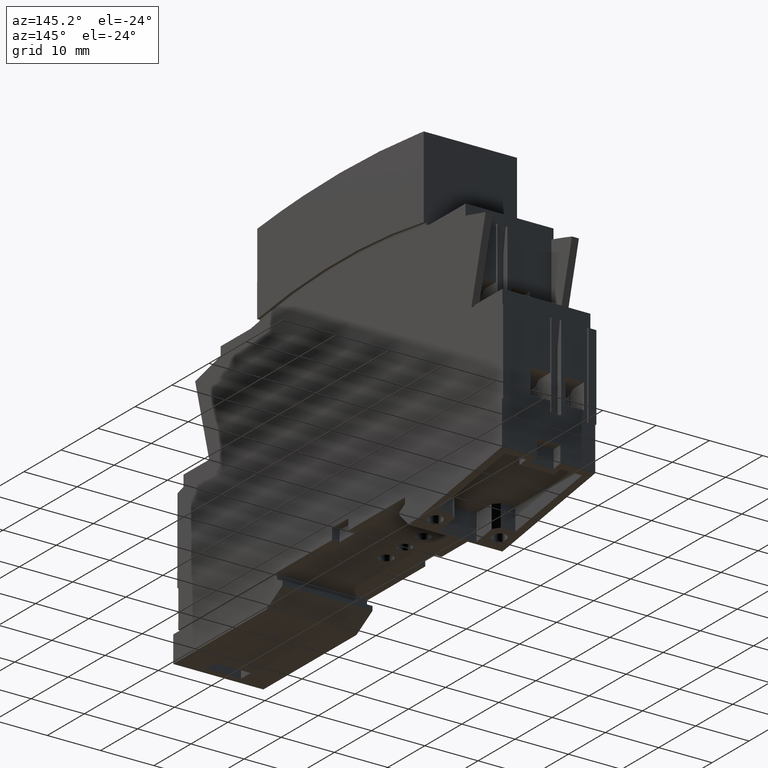
[diagram: clean part render]
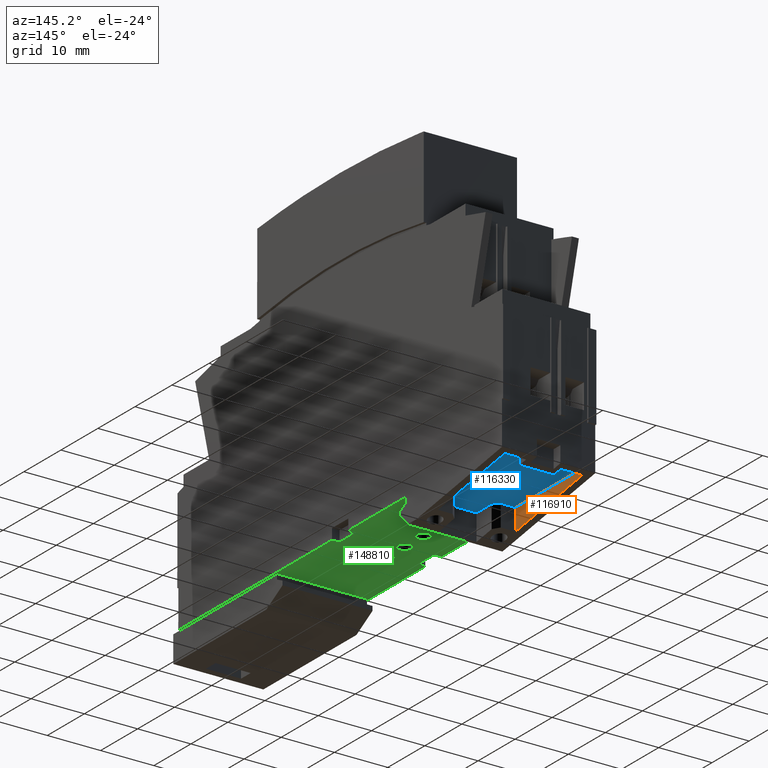
[diagram: same view with three faces highlighted in distinct colors, each labeled with its STEP entity id]
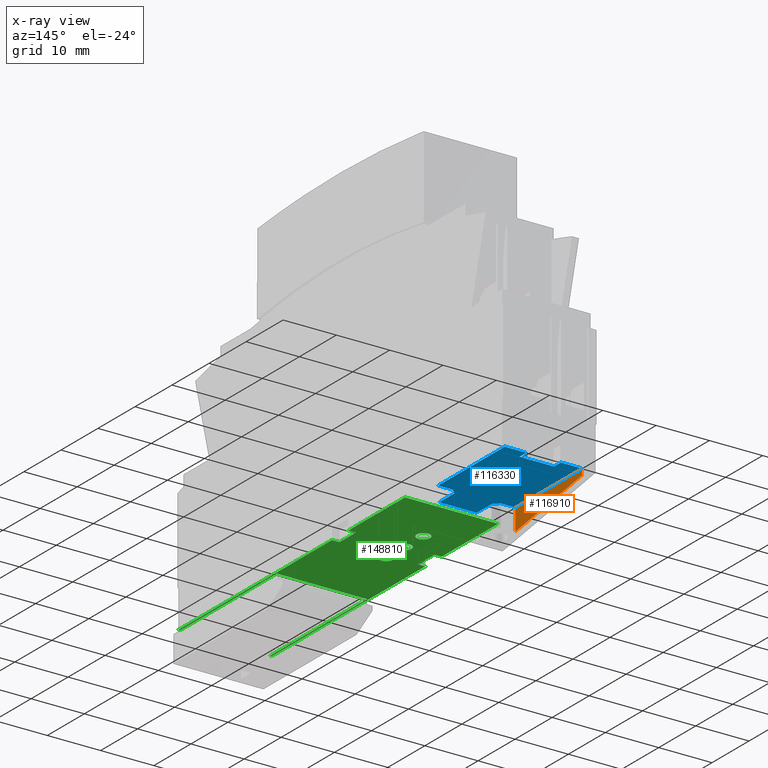
[diagram: x-ray of the same camera — body ghosted, the three highlighted faces saturated]
A machine part, auxiliary view with three faces highlighted in distinct colors.
The next image is the same camera in x-ray (body ghosted, the three faces saturated) — at least one of them is partly hidden behind the body in this view.
Their STEP definitions:

[orange] entity #116910 — the highlighted planar face has unit normal (-1, 0, 0).
#112490=CARTESIAN_POINT('',(6.78496750428754,-4.19527985993941,1.5));
#112500=VERTEX_POINT('',#112490);
#112530=CARTESIAN_POINT('',(-68.4771667671577,-16.3840906403943,
1.49999999999999));
#112540=DIRECTION('',(-0.98713832480494,-0.159868470003616,
-1.2490009027033E-16));
#112550=VECTOR('',#112540,1.);
#112560=LINE('',#112530,#112550);
#112570=CARTESIAN_POINT('',(24.7900842257833,-1.279325337486,1.5));
#112580=VERTEX_POINT('',#112570);
#112590=EDGE_CURVE('',#112580,#112500,#112560,.T.);
#115490=CARTESIAN_POINT('',(24.7920551208614,-0.150086785694299,1.5));
#115500=VERTEX_POINT('',#115490);
#115530=CARTESIAN_POINT('',(-58.3078183106328,-0.00504999848809717,
1.49999999999999));
#115540=DIRECTION('',(0.999998476913288,-0.00174532836589892,
1.42180690419244E-16));
#115550=VECTOR('',#115540,1.);
#115560=LINE('',#115530,#115550);
#115570=CARTESIAN_POINT('',(6.79208253642226,-0.118670875108116,1.5));
#115580=VERTEX_POINT('',#115570);
#115590=EDGE_CURVE('',#115580,#115500,#115560,.T.);
#116700=CARTESIAN_POINT('',(24.7920551208614,-0.150086785694299,1.5));
#116710=DIRECTION('',(1.42183641595663E-16,1.56682172662962E-18,-1.));
#116720=DIRECTION('',(-0.999998476913288,0.00174532836589892,
-1.42180690419244E-16));
#116730=AXIS2_PLACEMENT_3D('',#116700,#116710,#116720);
#116740=PLANE('',#116730);
#116750=CARTESIAN_POINT('',(6.79208253642226,-0.118670875108116,1.5));
#116760=DIRECTION('',(-0.00174532836589892,-0.999998476913288,
-1.81497648306798E-18));
#116770=VECTOR('',#116760,1.);
#116780=LINE('',#116750,#116770);
#116790=EDGE_CURVE('',#115580,#112500,#116780,.T.);
#116800=ORIENTED_EDGE('',*,*,#116790,.T.);
#116810=ORIENTED_EDGE('',*,*,#115590,.F.);
#116820=CARTESIAN_POINT('',(24.7920551208614,-0.150086785694299,1.5));
#116830=DIRECTION('',(-0.00174532836589892,-0.999998476913288,
-1.81497648306798E-18));
#116840=VECTOR('',#116830,1.);
#116850=LINE('',#116820,#116840);
#116860=EDGE_CURVE('',#115500,#112580,#116850,.T.);
#116870=ORIENTED_EDGE('',*,*,#116860,.F.);
#116880=ORIENTED_EDGE('',*,*,#112590,.F.);
#116890=EDGE_LOOP('',(#116880,#116870,#116810,#116800));
#116900=FACE_OUTER_BOUND('',#116890,.T.);
#116910=ADVANCED_FACE('',(#116900),#116740,.F.);

[blue] entity #116330 — the highlighted planar face has unit normal (-0, -0.0017, -1).
#115140=CARTESIAN_POINT('',(15.7920688286419,-0.134378830401207,
8.74999999999998));
#115150=DIRECTION('',(-0.00174532836589892,-0.999998476913288,
-1.81497852658377E-18));
#115160=DIRECTION('',(-0.999998476913288,0.00174532836589892,
2.39756207454349E-18));
#115170=AXIS2_PLACEMENT_3D('',#115140,#115150,#115160);
#115180=PLANE('',#115170);
#115190=CARTESIAN_POINT('',(-58.3078183106328,-0.00504999848809717,12.))
;
#115200=DIRECTION('',(0.999998476913288,-0.00174532836589892,
-2.37959924548987E-18));
#115210=VECTOR('',#115200,1.);
#115220=LINE('',#115190,#115210);
#115230=CARTESIAN_POINT('',(22.9920578624175,-0.146945194635677,12.));
#115240=VERTEX_POINT('',#115230);
#115250=CARTESIAN_POINT('',(24.7920551208614,-0.150086785694299,12.));
#115260=VERTEX_POINT('',#115250);
#115270=EDGE_CURVE('',#115240,#115260,#115220,.T.);
#115280=ORIENTED_EDGE('',*,*,#115270,.T.);
#115290=CARTESIAN_POINT('',(22.9920578624175,-0.146945194635677,94.));
#115300=DIRECTION('',(2.38287876757461E-18,-1.81914020319758E-18,1.));
#115310=VECTOR('',#115300,1.);
#115320=LINE('',#115290,#115310);
#115330=CARTESIAN_POINT('',(22.9920578624175,-0.146945194635677,5.5));
#115340=VERTEX_POINT('',#115330);
#115350=EDGE_CURVE('',#115340,#115240,#115320,.T.);
#115360=ORIENTED_EDGE('',*,*,#115350,.T.);
#115370=CARTESIAN_POINT('',(-58.3078183106328,-0.00504999848809717,
5.49999999999969));
#115380=DIRECTION('',(-0.999998476913288,0.00174532836589892,
-3.85256145848074E-15));
#115390=VECTOR('',#115380,1.);
#115400=LINE('',#115370,#115390);
#115410=CARTESIAN_POINT('',(24.7920551208614,-0.150086785694299,
5.50000000000001));
#115420=VERTEX_POINT('',#115410);
#115430=EDGE_CURVE('',#115420,#115340,#115400,.T.);
#115440=ORIENTED_EDGE('',*,*,#115430,.T.);
#115450=CARTESIAN_POINT('',(24.7920551208614,-0.150086785694299,94.));
#115460=DIRECTION('',(2.38287876757461E-18,-1.81914020319758E-18,1.));
#115470=VECTOR('',#115460,1.);
#115480=LINE('',#115450,#115470);
#115490=CARTESIAN_POINT('',(24.7920551208614,-0.150086785694299,1.5));
#115500=VERTEX_POINT('',#115490);
#115510=EDGE_CURVE('',#115500,#115420,#115480,.T.);
#115520=ORIENTED_EDGE('',*,*,#115510,.T.);
#115530=CARTESIAN_POINT('',(-58.3078183106328,-0.00504999848809717,
1.49999999999999));
#115540=DIRECTION('',(0.999998476913288,-0.00174532836589892,
1.42180690419244E-16));
#115550=VECTOR('',#115540,1.);
#115560=LINE('',#115530,#115550);
#115570=CARTESIAN_POINT('',(6.79208253642226,-0.118670875108116,1.5));
#115580=VERTEX_POINT('',#115570);
#115590=EDGE_CURVE('',#115580,#115500,#115560,.T.);
#115600=ORIENTED_EDGE('',*,*,#115590,.T.);
#115610=CARTESIAN_POINT('',(6.79208253642219,-0.118670875108116,94.));
#115620=DIRECTION('',(9.22801565948442E-16,2.04387088737263E-19,-1.));
#115630=VECTOR('',#115620,1.);
#115640=LINE('',#115610,#115630);
#115650=CARTESIAN_POINT('',(6.79208253642226,-0.118670875108116,4.25));
#115660=VERTEX_POINT('',#115650);
#115670=EDGE_CURVE('',#115660,#115580,#115640,.T.);
#115680=ORIENTED_EDGE('',*,*,#115670,.T.);
#115690=CARTESIAN_POINT('',(-58.3078183106328,-0.00504999848809717,
69.3499999999991));
#115700=DIRECTION('',(0.70710570420161,-0.00123413352292437,
-0.707106781186543));
#115710=VECTOR('',#115700,1.);
#115720=LINE('',#115690,#115710);
#115730=CARTESIAN_POINT('',(5.79208405950897,-0.116925546742216,
5.25000000000001));
#115740=VERTEX_POINT('',#115730);
#115750=EDGE_CURVE('',#115740,#115660,#115720,.T.);
#115760=ORIENTED_EDGE('',*,*,#115750,.T.);
#115770=CARTESIAN_POINT('',(-58.3078183106328,-0.00504999848809717,
5.24999999999999));
#115780=DIRECTION('',(0.999998476913288,-0.00174532836589892,
3.37762258789178E-16));
#115790=VECTOR('',#115780,1.);
#115800=LINE('',#115770,#115790);
#115810=CARTESIAN_POINT('',(1.69209030416451,-0.10976970044203,
5.25000000000002));
#115820=VERTEX_POINT('',#115810);
#115830=EDGE_CURVE('',#115820,#115740,#115800,.T.);
#115840=ORIENTED_EDGE('',*,*,#115830,.T.);
#115850=CARTESIAN_POINT('',(1.69209030416451,-0.109769700442033,94.));
#115860=DIRECTION('',(-2.38287876757461E-18,1.81914020319758E-18,-1.));
#115870=VECTOR('',#115860,1.);
#115880=LINE('',#115850,#115870);
#115890=CARTESIAN_POINT('',(1.69209030416451,-0.109769700442033,12.25));
#115900=VERTEX_POINT('',#115890);
#115910=EDGE_CURVE('',#115900,#115820,#115880,.T.);
#115920=ORIENTED_EDGE('',*,*,#115910,.T.);
#115930=CARTESIAN_POINT('',(-58.3078183106328,-0.00504999848809717,12.25
));
#115940=DIRECTION('',(-0.999998476913288,0.00174532836589892,
2.37959924548987E-18));
#115950=VECTOR('',#115940,1.);
#115960=LINE('',#115930,#115950);
#115970=CARTESIAN_POINT('',(5.79208405950897,-0.116925546742216,12.25));
#115980=VERTEX_POINT('',#115970);
#115990=EDGE_CURVE('',#115980,#115900,#115960,.T.);
#116000=ORIENTED_EDGE('',*,*,#115990,.T.);
#116010=CARTESIAN_POINT('',(-58.3078183106328,-0.00504999848809717,
-51.85));
#116020=DIRECTION('',(-0.707105704201605,0.00123413352292437,
-0.707106781186548));
#116030=VECTOR('',#116020,1.);
#116040=LINE('',#116010,#116030);
#116050=CARTESIAN_POINT('',(6.79208253642227,-0.118670875108116,13.25));
#116060=VERTEX_POINT('',#116050);
#116070=EDGE_CURVE('',#116060,#115980,#116040,.T.);
#116080=ORIENTED_EDGE('',*,*,#116070,.T.);
#116090=CARTESIAN_POINT('',(6.79208253642227,-0.118670875108116,94.));
#116100=DIRECTION('',(-2.38287876757461E-18,1.81914020319758E-18,-1.));
#116110=VECTOR('',#116100,1.);
#116120=LINE('',#116090,#116110);
#116130=CARTESIAN_POINT('',(6.79208253642226,-0.118670875108116,16.));
#116140=VERTEX_POINT('',#116130);
#116150=EDGE_CURVE('',#116140,#116060,#116120,.T.);
#116160=ORIENTED_EDGE('',*,*,#116150,.T.);
#116170=CARTESIAN_POINT('',(-58.3078183106328,-0.00504999848809717,16.))
;
#116180=DIRECTION('',(-0.999998476913288,0.00174532836589892,
-1.42180690419244E-16));
#116190=VECTOR('',#116180,1.);
#116200=LINE('',#116170,#116190);
#116210=CARTESIAN_POINT('',(24.7920551208614,-0.150086785694299,16.));
#116220=VERTEX_POINT('',#116210);
#116230=EDGE_CURVE('',#116220,#116140,#116200,.T.);
#116240=ORIENTED_EDGE('',*,*,#116230,.T.);
#116250=CARTESIAN_POINT('',(24.7920551208614,-0.150086785694299,94.));
#116260=DIRECTION('',(2.38287876757461E-18,-1.81914020319758E-18,1.));
#116270=VECTOR('',#116260,1.);
#116280=LINE('',#116250,#116270);
#116290=EDGE_CURVE('',#115260,#116220,#116280,.T.);
#116300=ORIENTED_EDGE('',*,*,#116290,.T.);
#116310=EDGE_LOOP('',(#116300,#116240,#116160,#116080,#116000,#115920,
#115840,#115760,#115680,#115600,#115520,#115440,#115360,#115280));
#116320=FACE_OUTER_BOUND('',#116310,.T.);
#116330=ADVANCED_FACE('',(#116320),#115180,.T.);

[green] entity #148810 — the highlighted planar face has unit normal (0, -0, 1).
#66020=CARTESIAN_POINT('',(0.,0.,17.5));
#66030=VERTEX_POINT('',#66020);
#66060=CARTESIAN_POINT('',(-17.5000000000001,-7.105427357601E-15,17.5));
#66070=DIRECTION('',(-1.,-4.41495656790506E-16,0.));
#66080=VECTOR('',#66070,1.);
#66090=LINE('',#66060,#66080);
#66100=CARTESIAN_POINT('',(-15.3078838033614,-7.105427357601E-15,17.5));
#66110=VERTEX_POINT('',#66100);
#66120=EDGE_CURVE('',#66030,#66110,#66090,.T.);
#66340=CARTESIAN_POINT('',(-19.7043864450481,-7.105427357601E-15,17.5));
#66350=VERTEX_POINT('',#66340);
#66380=CARTESIAN_POINT('',(-68.4771667671577,-2.1316282072803E-14,17.5))
;
#66390=DIRECTION('',(-1.,1.20370621524202E-35,0.));
#66400=VECTOR('',#66390,1.);
#66410=LINE('',#66380,#66400);
#66420=CARTESIAN_POINT('',(-61.2012513718032,-2.48689957516035E-14,17.5)
);
#66430=VERTEX_POINT('',#66420);
#66440=EDGE_CURVE('',#66350,#66430,#66410,.T.);
#95290=CARTESIAN_POINT('',(-19.7043864450481,-7.105427357601E-15,16.1));
#95300=VERTEX_POINT('',#95290);
#95330=CARTESIAN_POINT('',(-19.7043864450481,-7.105427357601E-15,17.5));
#95340=DIRECTION('',(2.47372159661619E-31,2.95828822839757E-31,-1.));
#95350=VECTOR('',#95340,1.);
#95360=LINE('',#95330,#95350);
#95370=EDGE_CURVE('',#66350,#95300,#95360,.T.);
#120820=CARTESIAN_POINT('',(-61.2012513718,-2.48689957516035E-14,0.));
#120830=VERTEX_POINT('',#120820);
#120860=CARTESIAN_POINT('',(-17.5000000000001,-7.105427357601E-15,0.));
#120870=DIRECTION('',(-1.,-4.41495656790506E-16,0.));
#120880=VECTOR('',#120870,1.);
#120890=LINE('',#120860,#120880);
#120900=CARTESIAN_POINT('',(-19.7043864450481,-7.105427357601E-15,0.));
#120910=VERTEX_POINT('',#120900);
#120920=EDGE_CURVE('',#120910,#120830,#120890,.T.);
#121140=CARTESIAN_POINT('',(-15.3078838033614,-7.105427357601E-15,0.));
#121150=VERTEX_POINT('',#121140);
#121180=CARTESIAN_POINT('',(-17.5000000000001,-7.105427357601E-15,0.));
#121190=DIRECTION('',(-1.,-4.41495656790506E-16,0.));
#121200=VECTOR('',#121190,1.);
#121210=LINE('',#121180,#121200);
#121220=CARTESIAN_POINT('',(0.,0.,0.));
#121230=VERTEX_POINT('',#121220);
#121240=EDGE_CURVE('',#121230,#121150,#121210,.T.);
#147240=CARTESIAN_POINT('',(-15.3078838033614,-7.105427357601E-15,
1.40000000000001));
#147250=VERTEX_POINT('',#147240);
#147330=CARTESIAN_POINT('',(-19.7043864450481,-7.105427357601E-15,
1.40000000000001));
#147340=VERTEX_POINT('',#147330);
#147370=CARTESIAN_POINT('',(-17.5000000000001,-7.105427357601E-15,
1.40000000000001));
#147380=DIRECTION('',(-1.,-4.41495656790506E-16,2.46519032881566E-31));
#147390=VECTOR('',#147380,1.);
#147400=LINE('',#147370,#147390);
#147410=EDGE_CURVE('',#147250,#147340,#147400,.T.);
#147530=CARTESIAN_POINT('',(-63.,-2.8421709430404E-14,
-3.5527136788005E-15));
#147540=DIRECTION('',(-4.41495656790506E-16,1.,2.95828822839757E-31));
#147550=DIRECTION('',(-1.,-4.41495656790506E-16,1.35525271563162E-20));
#147560=AXIS2_PLACEMENT_3D('',#147530,#147540,#147550);
#147570=PLANE('',#147560);
#147580=CARTESIAN_POINT('',(-10.5043999342993,-7.105427357601E-15,
6.74999798250523));
#147590=DIRECTION('',(0.,-1.,0.));
#147600=DIRECTION('',(2.47372159661619E-31,0.,-1.));
#147610=AXIS2_PLACEMENT_3D('',#147580,#147590,#147600);
#147620=CIRCLE('',#147610,1.24999835083563);
#147630=CARTESIAN_POINT('',(-10.5043999342993,-7.105427357601E-15,
5.4999996316696));
#147640=VERTEX_POINT('',#147630);
#147650=CARTESIAN_POINT('',(-10.5043999342993,-7.105427357601E-15,
7.99999633334086));
#147660=VERTEX_POINT('',#147650);
#147670=EDGE_CURVE('',#147640,#147660,#147620,.T.);
#147680=ORIENTED_EDGE('',*,*,#147670,.F.);
#147690=EDGE_CURVE('',#147660,#147640,#147620,.T.);
#147700=ORIENTED_EDGE('',*,*,#147690,.F.);
#147710=EDGE_LOOP('',(#147700,#147680));
#147720=FACE_BOUND('',#147710,.T.);
#147730=CARTESIAN_POINT('',(-15.5043907424567,-7.105427357601E-15,
6.75000027873531));
#147740=DIRECTION('',(0.,-1.,0.));
#147750=DIRECTION('',(2.47372159661619E-31,0.,-1.));
#147760=AXIS2_PLACEMENT_3D('',#147730,#147740,#147750);
#147770=CIRCLE('',#147760,1.25000039612564);
#147780=CARTESIAN_POINT('',(-15.5043907424567,-7.105427357601E-15,
5.49999988260967));
#147790=VERTEX_POINT('',#147780);
#147800=CARTESIAN_POINT('',(-15.5043907424567,-7.105427357601E-15,
8.00000067486095));
#147810=VERTEX_POINT('',#147800);
#147820=EDGE_CURVE('',#147790,#147810,#147770,.T.);
#147830=ORIENTED_EDGE('',*,*,#147820,.F.);
#147840=EDGE_CURVE('',#147810,#147790,#147770,.T.);
#147850=ORIENTED_EDGE('',*,*,#147840,.F.);
#147860=EDGE_LOOP('',(#147850,#147830));
#147870=FACE_BOUND('',#147860,.T.);
#147880=CARTESIAN_POINT('',(-20.5043817354747,-1.06581410364015E-14,
6.7500006715901));
#147890=DIRECTION('',(0.,-1.,0.));
#147900=DIRECTION('',(2.47372159661619E-31,0.,-1.));
#147910=AXIS2_PLACEMENT_3D('',#147880,#147890,#147900);
#147920=CIRCLE('',#147910,1.25000166008397);
#147930=CARTESIAN_POINT('',(-20.5043817354747,-1.06581410364015E-14,
5.49999901150612));
#147940=VERTEX_POINT('',#147930);
#147950=CARTESIAN_POINT('',(-20.5043817354747,-1.06581410364015E-14,
8.00000233167407));
#147960=VERTEX_POINT('',#147950);
#147970=EDGE_CURVE('',#147940,#147960,#147920,.T.);
#147980=ORIENTED_EDGE('',*,*,#147970,.F.);
#147990=EDGE_CURVE('',#147960,#147940,#147920,.T.);
#148000=ORIENTED_EDGE('',*,*,#147990,.F.);
#148010=EDGE_LOOP('',(#148000,#147980));
#148020=FACE_BOUND('',#148010,.T.);
#148030=CARTESIAN_POINT('',(-61.201251371801,-2.48689957516035E-14,0.));
#148040=DIRECTION('',(1.35525270430729E-20,-9.86076131221226E-32,1.));
#148050=VECTOR('',#148040,1.);
#148060=LINE('',#148030,#148050);
#148070=CARTESIAN_POINT('',(-61.2012513718,-2.48689957516035E-14,
0.299999999999994));
#148080=VERTEX_POINT('',#148070);
#148090=EDGE_CURVE('',#120830,#148080,#148060,.T.);
#148100=ORIENTED_EDGE('',*,*,#148090,.F.);
#148110=CARTESIAN_POINT('',(-4.49999999999997,0.,0.299999999999994));
#148120=DIRECTION('',(-1.,-4.41495656790506E-16,1.35525271560688E-20));
#148130=VECTOR('',#148120,1.);
#148140=LINE('',#148110,#148130);
#148150=CARTESIAN_POINT('',(-35.,-1.4210854715202E-14,0.299999999999994)
);
#148160=VERTEX_POINT('',#148150);
#148170=EDGE_CURVE('',#148160,#148080,#148140,.T.);
#148180=ORIENTED_EDGE('',*,*,#148170,.T.);
#148190=CARTESIAN_POINT('',(-35.,-1.4210854715202E-14,17.5));
#148200=DIRECTION('',(-1.35525271560688E-20,2.95822087141495E-31,-1.));
#148210=VECTOR('',#148200,1.);
#148220=LINE('',#148190,#148210);
#148230=CARTESIAN_POINT('',(-35.,-1.4210854715202E-14,17.2));
#148240=VERTEX_POINT('',#148230);
#148250=EDGE_CURVE('',#148240,#148160,#148220,.T.);
#148260=ORIENTED_EDGE('',*,*,#148250,.T.);
#148270=CARTESIAN_POINT('',(-4.49999999999999,-2.1316282072803E-14,17.2)
);
#148280=DIRECTION('',(1.,-1.20370621524202E-35,0.));
#148290=VECTOR('',#148280,1.);
#148300=LINE('',#148270,#148290);
#148310=CARTESIAN_POINT('',(-61.2012513718,-2.8421709430404E-14,17.2));
#148320=VERTEX_POINT('',#148310);
#148330=EDGE_CURVE('',#148320,#148240,#148300,.T.);
#148340=ORIENTED_EDGE('',*,*,#148330,.T.);
#148350=CARTESIAN_POINT('',(-61.2012513718032,-2.1316282072803E-14,0.));
#148360=DIRECTION('',(1.3552526930077E-20,9.86076131221475E-32,1.));
#148370=VECTOR('',#148360,1.);
#148380=LINE('',#148350,#148370);
#148390=EDGE_CURVE('',#148320,#66430,#148380,.T.);
#148400=ORIENTED_EDGE('',*,*,#148390,.F.);
#148410=ORIENTED_EDGE('',*,*,#66440,.T.);
#148420=ORIENTED_EDGE('',*,*,#95370,.F.);
#148430=CARTESIAN_POINT('',(-17.5000000000001,-7.105427357601E-15,16.1))
;
#148440=DIRECTION('',(1.,4.41495656790506E-16,-2.46519032881566E-31));
#148450=VECTOR('',#148440,1.);
#148460=LINE('',#148430,#148450);
#148470=CARTESIAN_POINT('',(-15.3078838033614,-7.105427357601E-15,16.1))
;
#148480=VERTEX_POINT('',#148470);
#148490=EDGE_CURVE('',#95300,#148480,#148460,.T.);
#148500=ORIENTED_EDGE('',*,*,#148490,.F.);
#148510=CARTESIAN_POINT('',(-15.3078838033614,-7.105427357601E-15,17.5))
;
#148520=DIRECTION('',(-2.47372159661619E-31,-2.95828822839757E-31,1.));
#148530=VECTOR('',#148520,1.);
#148540=LINE('',#148510,#148530);
#148550=EDGE_CURVE('',#148480,#66110,#148540,.T.);
#148560=ORIENTED_EDGE('',*,*,#148550,.F.);
#148570=ORIENTED_EDGE('',*,*,#66120,.T.);
#148580=CARTESIAN_POINT('',(0.,0.,17.5));
#148590=DIRECTION('',(1.35525271560688E-20,-2.95822087141495E-31,1.));
#148600=VECTOR('',#148590,1.);
#148610=LINE('',#148580,#148600);
#148620=EDGE_CURVE('',#121230,#66030,#148610,.T.);
#148630=ORIENTED_EDGE('',*,*,#148620,.T.);
#148640=ORIENTED_EDGE('',*,*,#121240,.F.);
#148650=CARTESIAN_POINT('',(-15.3078838033614,-7.105427357601E-15,17.5))
;
#148660=DIRECTION('',(-2.47372159661619E-31,-2.95828822839757E-31,1.));
#148670=VECTOR('',#148660,1.);
#148680=LINE('',#148650,#148670);
#148690=EDGE_CURVE('',#121150,#147250,#148680,.T.);
#148700=ORIENTED_EDGE('',*,*,#148690,.F.);
#148710=ORIENTED_EDGE('',*,*,#147410,.F.);
#148720=CARTESIAN_POINT('',(-19.7043864450481,-7.105427357601E-15,17.5))
;
#148730=DIRECTION('',(2.47372159661619E-31,2.95828822839757E-31,-1.));
#148740=VECTOR('',#148730,1.);
#148750=LINE('',#148720,#148740);
#148760=EDGE_CURVE('',#147340,#120910,#148750,.T.);
#148770=ORIENTED_EDGE('',*,*,#148760,.F.);
#148780=ORIENTED_EDGE('',*,*,#120920,.F.);
#148790=EDGE_LOOP('',(#148780,#148770,#148710,#148700,#148640,#148630,
#148570,#148560,#148500,#148420,#148410,#148400,#148340,#148260,#148180,
#148100));
#148800=FACE_OUTER_BOUND('',#148790,.T.);
#148810=ADVANCED_FACE('',(#147720,#147870,#148020,#148800),#147570,.F.);